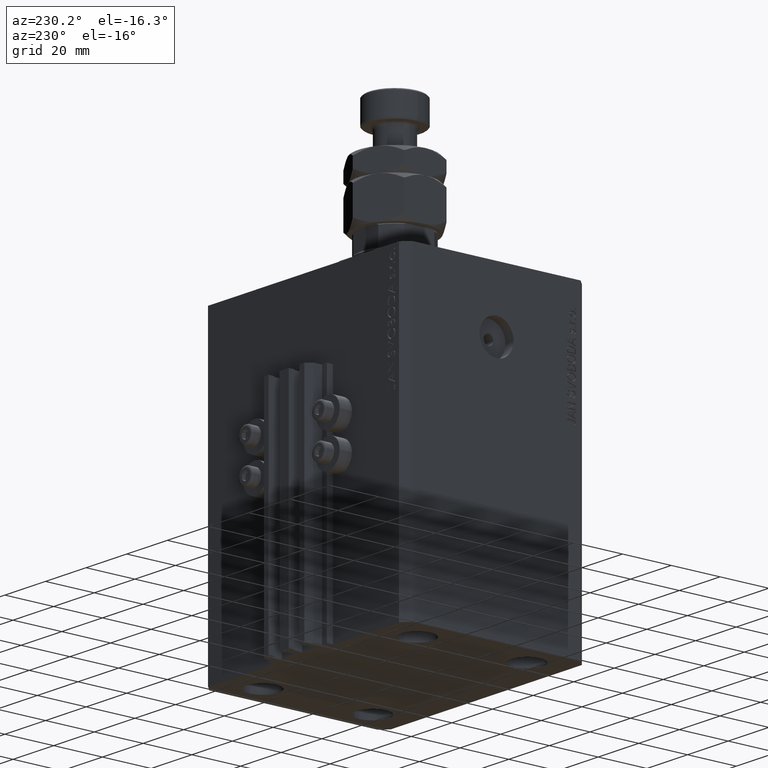
[diagram: clean part render]
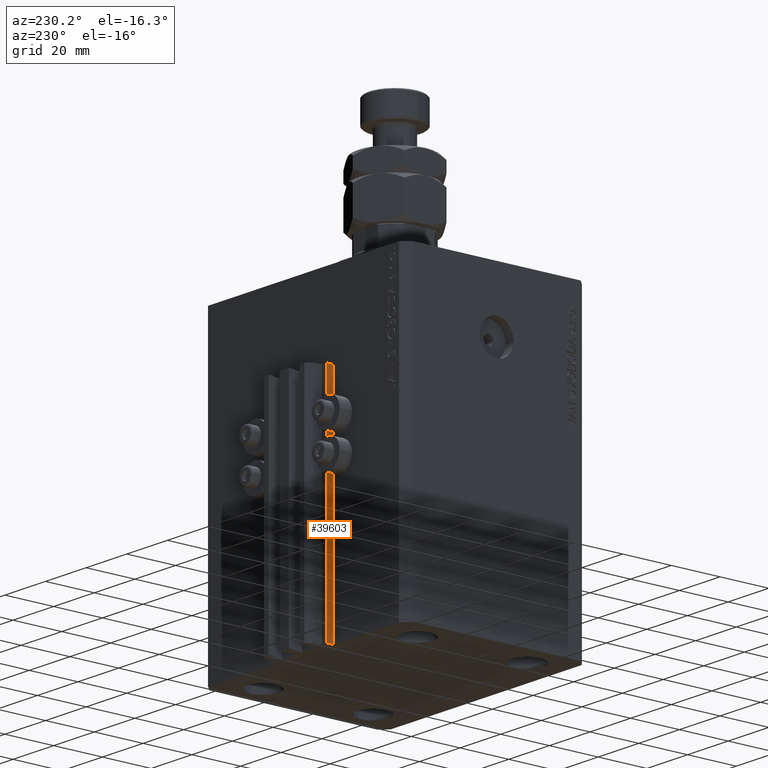
[diagram: same view with one face highlighted and labeled with its STEP entity id]
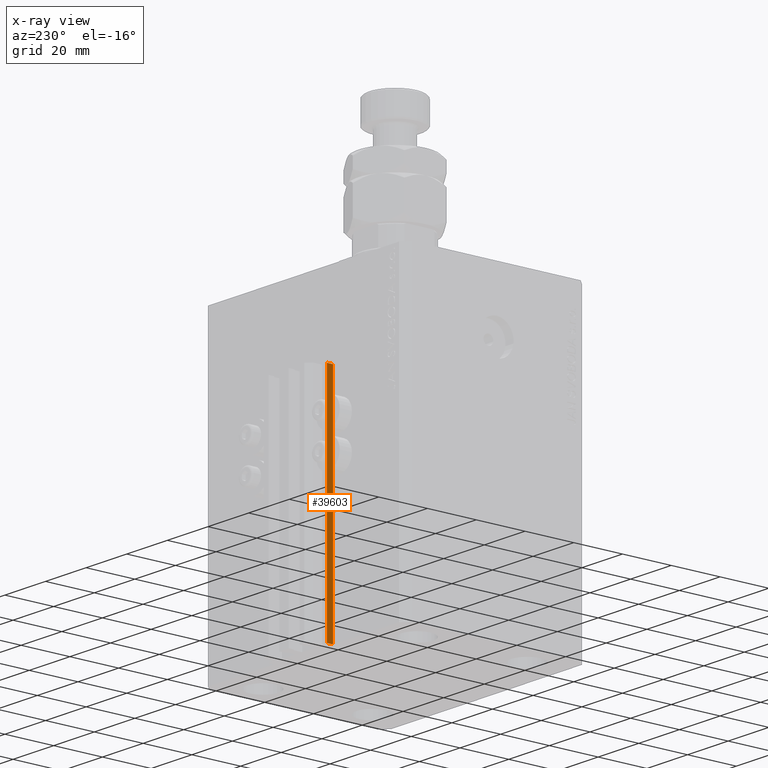
[diagram: x-ray of the same camera — body ghosted, the highlighted face saturated]
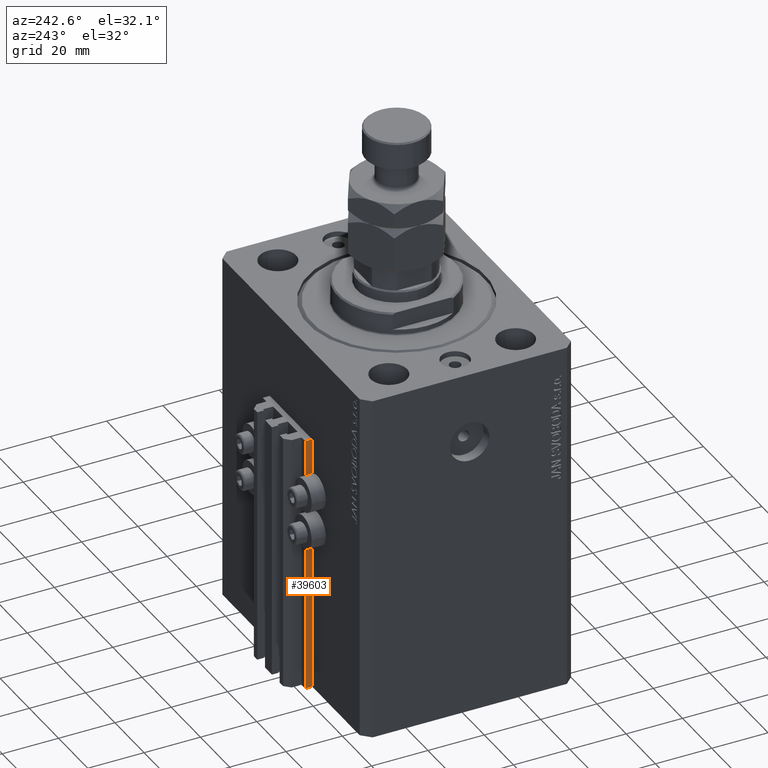
[diagram: same view with one face highlighted and labeled with its STEP entity id]
A machine part, auxiliary view. The second image highlights one B-rep face of the part: STEP entity #39603.
The next image is the same camera in x-ray: the body ghosted, the highlighted face saturated — about 0% of this face is hidden behind the body in this view.
A second angle (auxiliary view) of the same face is appended — the face is thin or edge-on in the first view.
In plain terms, the highlighted planar face has unit normal (-1, 0, 0).
Its self-contained STEP definition (entity closure, byte-faithful):
#531 = VECTOR ( 'NONE', #39523, 1000.000000000000000 ) ;
#1090 = EDGE_CURVE ( 'NONE', #44659, #25735, #36052, .T. ) ;
#1789 = ORIENTED_EDGE ( 'NONE', *, *, #28508, .F. ) ;
#5854 = EDGE_LOOP ( 'NONE', ( #1789, #24081, #12904, #26296 ) ) ;
#10779 = DIRECTION ( 'NONE',  ( 0.000000000000000000, 0.000000000000000000, 1.000000000000000000 ) ) ;
#11164 = EDGE_CURVE ( 'NONE', #16327, #44659, #19215, .T. ) ;
#12904 = ORIENTED_EDGE ( 'NONE', *, *, #11164, .T. ) ;
#14126 = LINE ( 'NONE', #16847, #15047 ) ;
#15047 = VECTOR ( 'NONE', #29202, 1000.000000000000000 ) ;
#15748 = DIRECTION ( 'NONE',  ( 0.000000000000000000, -1.000000000000000000, 0.000000000000000000 ) ) ;
#16327 = VERTEX_POINT ( 'NONE', #17492 ) ;
#16847 = CARTESIAN_POINT ( 'NONE',  ( -14.50000000000000000, 39.99999999999999289, -33.00000000000000000 ) ) ;
#17492 = CARTESIAN_POINT ( 'NONE',  ( -14.50000000000000000, 39.99999999999999289, -125.0000000000000000 ) ) ;
#18229 = VECTOR ( 'NONE', #20067, 1000.000000000000000 ) ;
#19215 = LINE ( 'NONE', #34803, #35482 ) ;
#19825 = LINE ( 'NONE', #35417, #18229 ) ;
#20067 = DIRECTION ( 'NONE',  ( 0.000000000000000000, 0.000000000000000000, 1.000000000000000000 ) ) ;
#22143 = FACE_OUTER_BOUND ( 'NONE', #5854, .T. ) ;
#24081 = ORIENTED_EDGE ( 'NONE', *, *, #28447, .F. ) ;
#25735 = VERTEX_POINT ( 'NONE', #43665 ) ;
#25849 = PLANE ( 'NONE',  #32804 ) ;
#26296 = ORIENTED_EDGE ( 'NONE', *, *, #1090, .T. ) ;
#28447 = EDGE_CURVE ( 'NONE', #16327, #44339, #19825, .T. ) ;
#28508 = EDGE_CURVE ( 'NONE', #44339, #25735, #14126, .T. ) ;
#29202 = DIRECTION ( 'NONE',  ( 0.000000000000000000, -1.000000000000000000, 0.000000000000000000 ) ) ;
#32638 = CARTESIAN_POINT ( 'NONE',  ( -14.50000000000000000, 39.99999999999999289, -33.00000000000000000 ) ) ;
#32804 = AXIS2_PLACEMENT_3D ( 'NONE', #40964, #37244, #10779 ) ;
#34803 = CARTESIAN_POINT ( 'NONE',  ( -14.50000000000000000, 39.99999999999999289, -125.0000000000000000 ) ) ;
#35417 = CARTESIAN_POINT ( 'NONE',  ( -14.50000000000000000, 39.99999999999999289, -125.0000000000000000 ) ) ;
#35482 = VECTOR ( 'NONE', #15748, 1000.000000000000000 ) ;
#36052 = LINE ( 'NONE', #39762, #531 ) ;
#37244 = DIRECTION ( 'NONE',  ( -1.000000000000000000, 0.000000000000000000, 0.000000000000000000 ) ) ;
#39465 = CARTESIAN_POINT ( 'NONE',  ( -14.50000000000000000, 37.50000000000000000, -125.0000000000000000 ) ) ;
#39523 = DIRECTION ( 'NONE',  ( 0.000000000000000000, 0.000000000000000000, 1.000000000000000000 ) ) ;
#39603 = ADVANCED_FACE ( 'NONE', ( #22143 ), #25849, .T. ) ;
#39762 = CARTESIAN_POINT ( 'NONE',  ( -14.50000000000000000, 37.50000000000000000, -125.0000000000000000 ) ) ;
#40964 = CARTESIAN_POINT ( 'NONE',  ( -14.50000000000000000, 39.99999999999999289, -125.0000000000000000 ) ) ;
#43665 = CARTESIAN_POINT ( 'NONE',  ( -14.50000000000000000, 37.50000000000000000, -33.00000000000000000 ) ) ;
#44339 = VERTEX_POINT ( 'NONE', #32638 ) ;
#44659 = VERTEX_POINT ( 'NONE', #39465 ) ;